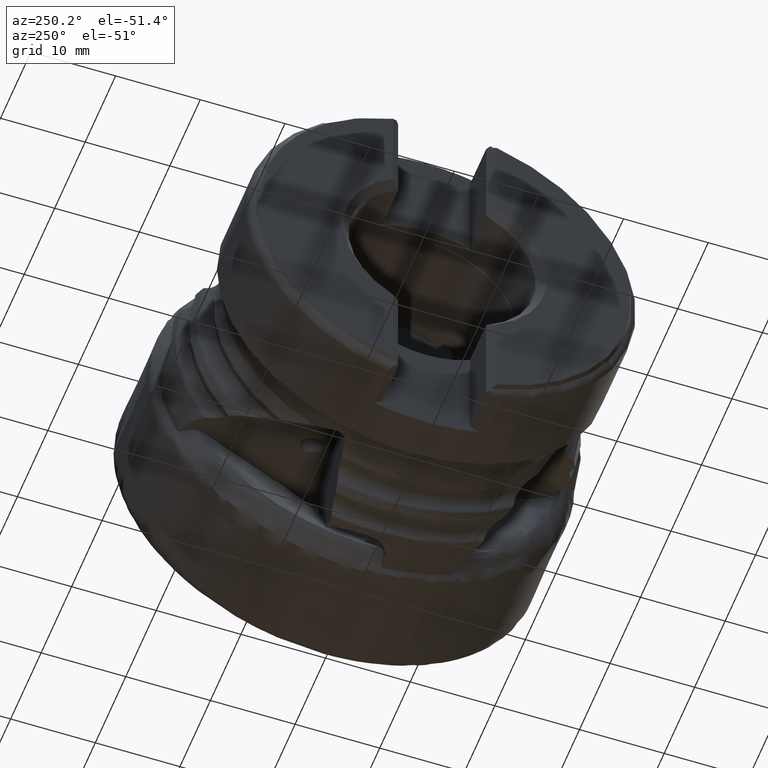
[diagram: clean part render]
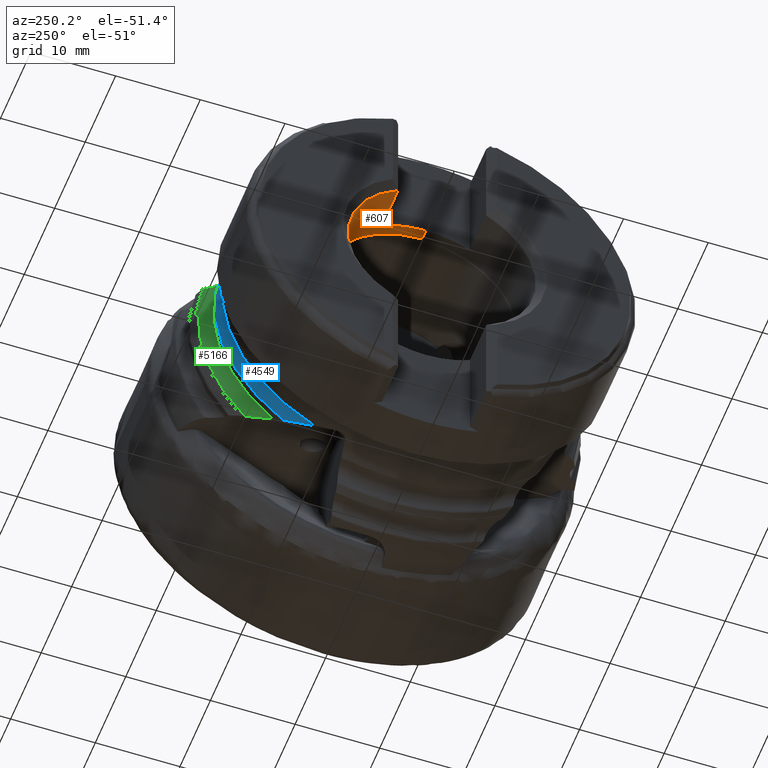
[diagram: same view with three faces highlighted in distinct colors, each labeled with its STEP entity id]
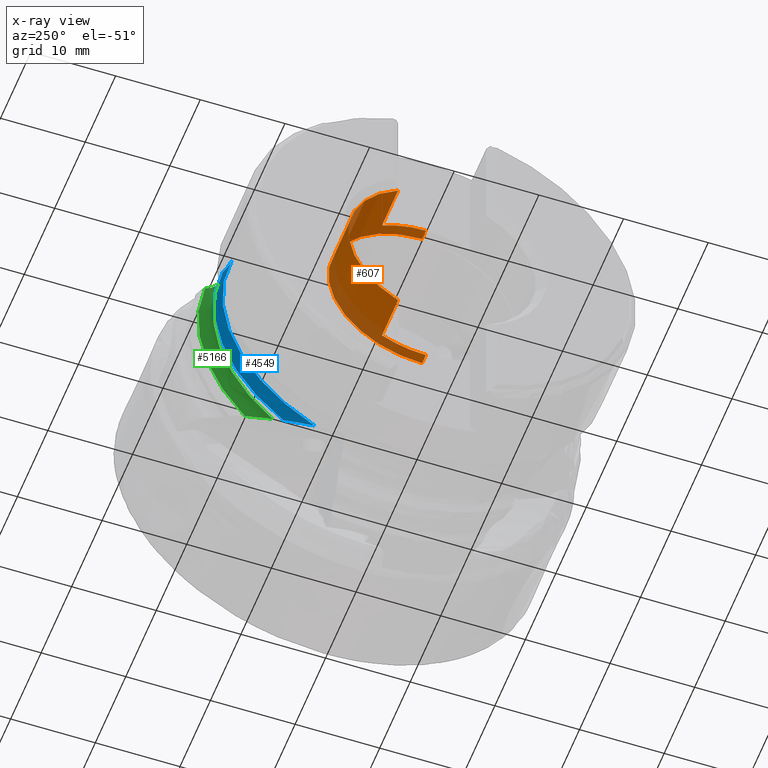
[diagram: x-ray of the same camera — body ghosted, the three highlighted faces saturated]
A machine part, auxiliary view with three faces highlighted in distinct colors.
The next image is the same camera in x-ray (body ghosted, the three faces saturated) — at least one of them is partly hidden behind the body in this view.
Their STEP definitions:

[orange] entity #607 — the highlighted cylindrical surface (partial cylindrical patch) has radius 11.075 mm, axis along (1, -0, -0).
#270 = VERTEX_POINT ( 'NONE', #12231 ) ;
#335 = DIRECTION ( 'NONE',  ( 1.000000000000000000, -0.0000000000000000000, -0.0000000000000000000 ) ) ;
#607 = ADVANCED_FACE ( 'NONE', ( #13836 ), #11454, .F. ) ;
#789 = CARTESIAN_POINT ( 'NONE',  ( -38.25000000000000700, 5.199999999999994800, 9.778324242936509600 ) ) ;
#2027 = CIRCLE ( 'NONE', #12628, 11.07499999999999800 ) ;
#2056 = DIRECTION ( 'NONE',  ( 1.000000000000000000, -0.0000000000000000000, -0.0000000000000000000 ) ) ;
#2134 = VECTOR ( 'NONE', #6809, 1000.000000000000000 ) ;
#2639 = VERTEX_POINT ( 'NONE', #789 ) ;
#2943 = CARTESIAN_POINT ( 'NONE',  ( -32.95000000000001000, 0.0000000000000000000, 0.0000000000000000000 ) ) ;
#2994 = DIRECTION ( 'NONE',  ( -1.000000000000000000, -0.0000000000000000000, -0.0000000000000000000 ) ) ;
#3136 = DIRECTION ( 'NONE',  ( 0.0000000000000000000, 0.0000000000000000000, -1.000000000000000000 ) ) ;
#3620 = DIRECTION ( 'NONE',  ( 1.000000000000000000, -0.0000000000000000000, -0.0000000000000000000 ) ) ;
#3708 = ORIENTED_EDGE ( 'NONE', *, *, #7189, .T. ) ;
#4034 = DIRECTION ( 'NONE',  ( 1.000000000000000000, -0.0000000000000000000, -0.0000000000000000000 ) ) ;
#4147 = CIRCLE ( 'NONE', #9518, 11.07499999999999800 ) ;
#4214 = DIRECTION ( 'NONE',  ( -1.000000000000000000, -0.0000000000000000000, -0.0000000000000000000 ) ) ;
#4238 = CARTESIAN_POINT ( 'NONE',  ( -38.25000000000000700, 0.0000000000000000000, 0.0000000000000000000 ) ) ;
#4252 = VERTEX_POINT ( 'NONE', #11065 ) ;
#4625 = LINE ( 'NONE', #6129, #7390 ) ;
#4799 = AXIS2_PLACEMENT_3D ( 'NONE', #11693, #3620, #14172 ) ;
#5029 = VERTEX_POINT ( 'NONE', #6928 ) ;
#5142 = VERTEX_POINT ( 'NONE', #7239 ) ;
#5265 = LINE ( 'NONE', #12872, #2134 ) ;
#5360 = AXIS2_PLACEMENT_3D ( 'NONE', #2943, #2994, #14611 ) ;
#5426 = ORIENTED_EDGE ( 'NONE', *, *, #6360, .T. ) ;
#5766 = DIRECTION ( 'NONE',  ( 1.000000000000000000, -0.0000000000000000000, -0.0000000000000000000 ) ) ;
#6129 = CARTESIAN_POINT ( 'NONE',  ( 0.0000000000000000000, 1.356296330055693400E-015, 11.07499999999999800 ) ) ;
#6360 = EDGE_CURVE ( 'NONE', #4252, #270, #9677, .T. ) ;
#6466 = VERTEX_POINT ( 'NONE', #14025 ) ;
#6675 = CARTESIAN_POINT ( 'NONE',  ( -31.70000000000000600, 0.0000000000000000000, 0.0000000000000000000 ) ) ;
#6736 = EDGE_CURVE ( 'NONE', #270, #6466, #4147, .T. ) ;
#6809 = DIRECTION ( 'NONE',  ( -1.000000000000000000, 0.0000000000000000000, 0.0000000000000000000 ) ) ;
#6839 = CARTESIAN_POINT ( 'NONE',  ( 0.0000000000000000000, 0.0000000000000000000, -11.07499999999999800 ) ) ;
#6928 = CARTESIAN_POINT ( 'NONE',  ( -32.95000000000001000, 1.356296330055693400E-015, 11.07499999999999800 ) ) ;
#6985 = AXIS2_PLACEMENT_3D ( 'NONE', #4238, #4034, #12461 ) ;
#7189 = EDGE_CURVE ( 'NONE', #5142, #2639, #5265, .T. ) ;
#7239 = CARTESIAN_POINT ( 'NONE',  ( -32.95000000000001000, 5.199999999999994800, 9.778324242936518500 ) ) ;
#7270 = ORIENTED_EDGE ( 'NONE', *, *, #13558, .T. ) ;
#7390 = VECTOR ( 'NONE', #335, 1000.000000000000000 ) ;
#7789 = ORIENTED_EDGE ( 'NONE', *, *, #12547, .T. ) ;
#7957 = EDGE_CURVE ( 'NONE', #8272, #2639, #13903, .T. ) ;
#7961 = DIRECTION ( 'NONE',  ( 0.0000000000000000000, 0.0000000000000000000, -1.000000000000000000 ) ) ;
#8272 = VERTEX_POINT ( 'NONE', #9941 ) ;
#8465 = VERTEX_POINT ( 'NONE', #15161 ) ;
#9411 = ORIENTED_EDGE ( 'NONE', *, *, #7957, .F. ) ;
#9518 = AXIS2_PLACEMENT_3D ( 'NONE', #6675, #2056, #7961 ) ;
#9677 = LINE ( 'NONE', #6839, #10961 ) ;
#9811 = EDGE_CURVE ( 'NONE', #5029, #6466, #4625, .T. ) ;
#9894 = LINE ( 'NONE', #15255, #10256 ) ;
#9941 = CARTESIAN_POINT ( 'NONE',  ( -38.25000000000000700, 5.199999999999994800, -9.778324242936523800 ) ) ;
#10256 = VECTOR ( 'NONE', #5766, 1000.000000000000000 ) ;
#10450 = ORIENTED_EDGE ( 'NONE', *, *, #9811, .F. ) ;
#10657 = ORIENTED_EDGE ( 'NONE', *, *, #11470, .T. ) ;
#10961 = VECTOR ( 'NONE', #14978, 1000.000000000000000 ) ;
#11065 = CARTESIAN_POINT ( 'NONE',  ( -32.95000000000001000, 0.0000000000000000000, -11.07499999999999800 ) ) ;
#11264 = CARTESIAN_POINT ( 'NONE',  ( -32.95000000000001000, 0.0000000000000000000, 0.0000000000000000000 ) ) ;
#11454 = CYLINDRICAL_SURFACE ( 'NONE', #4799, 11.07499999999999800 ) ;
#11470 = EDGE_CURVE ( 'NONE', #5029, #5142, #2027, .T. ) ;
#11693 = CARTESIAN_POINT ( 'NONE',  ( 0.0000000000000000000, 0.0000000000000000000, 0.0000000000000000000 ) ) ;
#12231 = CARTESIAN_POINT ( 'NONE',  ( -31.70000000000000600, 0.0000000000000000000, -11.07499999999999800 ) ) ;
#12461 = DIRECTION ( 'NONE',  ( 0.0000000000000000000, 0.0000000000000000000, -1.000000000000000000 ) ) ;
#12547 = EDGE_CURVE ( 'NONE', #8272, #8465, #9894, .T. ) ;
#12628 = AXIS2_PLACEMENT_3D ( 'NONE', #11264, #4214, #3136 ) ;
#12872 = CARTESIAN_POINT ( 'NONE',  ( 0.0000000000000000000, 5.199999999999994800, 9.778324242936518500 ) ) ;
#13494 = ORIENTED_EDGE ( 'NONE', *, *, #6736, .T. ) ;
#13558 = EDGE_CURVE ( 'NONE', #8465, #4252, #15258, .T. ) ;
#13836 = FACE_OUTER_BOUND ( 'NONE', #14389, .T. ) ;
#13903 = CIRCLE ( 'NONE', #6985, 11.07499999999999600 ) ;
#14025 = CARTESIAN_POINT ( 'NONE',  ( -31.70000000000000600, 1.356296330055693400E-015, 11.07499999999999800 ) ) ;
#14172 = DIRECTION ( 'NONE',  ( 0.0000000000000000000, 0.0000000000000000000, -1.000000000000000000 ) ) ;
#14389 = EDGE_LOOP ( 'NONE', ( #10450, #10657, #3708, #9411, #7789, #7270, #5426, #13494 ) ) ;
#14611 = DIRECTION ( 'NONE',  ( 0.0000000000000000000, 8.881784197001252300E-016, -1.000000000000000000 ) ) ;
#14978 = DIRECTION ( 'NONE',  ( 1.000000000000000000, -0.0000000000000000000, -0.0000000000000000000 ) ) ;
#15161 = CARTESIAN_POINT ( 'NONE',  ( -32.95000000000001000, 5.199999999999994800, -9.778324242936518500 ) ) ;
#15255 = CARTESIAN_POINT ( 'NONE',  ( 0.0000000000000000000, 5.199999999999994800, -9.778324242936518500 ) ) ;
#15258 = CIRCLE ( 'NONE', #5360, 11.07499999999999800 ) ;

[blue] entity #4549 — the highlighted toroidal blend (fillet) surface has major radius 25.1416 mm and minor (blend) radius 4 mm.
#152 = CARTESIAN_POINT ( 'NONE',  ( -23.20598338171591700, 20.50650087780077500, 6.468539057037883600 ) ) ;
#635 = AXIS2_PLACEMENT_3D ( 'NONE', #7182, #12989, #1221 ) ;
#1221 = DIRECTION ( 'NONE',  ( 0.0000000000000000000, 0.0000000000000000000, 1.000000000000000000 ) ) ;
#1392 = ORIENTED_EDGE ( 'NONE', *, *, #13475, .T. ) ;
#2779 = B_SPLINE_CURVE_WITH_KNOTS ( 'NONE', 3,
 ( #152, #9489, #9387, #8325, #4773, #6987 ),
 .UNSPECIFIED., .F., .F.,
 ( 4, 2, 4 ),
 ( 2.258041023810004800E-007, 0.0008761439532688768300, 0.001752062102435372700 ),
 .UNSPECIFIED. ) ;
#3265 = CIRCLE ( 'NONE', #9007, 21.14159263926023500 ) ;
#4549 = ADVANCED_FACE ( 'NONE', ( #6967 ), #15074, .F. ) ;
#4773 = CARTESIAN_POINT ( 'NONE',  ( -24.57838190627169100, 20.05309677775108700, 6.696476503619866300 ) ) ;
#5190 = CARTESIAN_POINT ( 'NONE',  ( -24.86646095473861700, 0.0000000000000000000, 0.0000000000000000000 ) ) ;
#5498 = CARTESIAN_POINT ( 'NONE',  ( -24.86646095473861700, 20.03699206719064200, 6.744322666047485100 ) ) ;
#5929 = VERTEX_POINT ( 'NONE', #12659 ) ;
#6093 = CARTESIAN_POINT ( 'NONE',  ( -23.20598338171591700, 13.36499921445363600, -16.84444631863339800 ) ) ;
#6967 = FACE_OUTER_BOUND ( 'NONE', #9731, .T. ) ;
#6987 = CARTESIAN_POINT ( 'NONE',  ( -24.86646095473861700, 20.03699206719064200, 6.744322666047485100 ) ) ;
#7009 = EDGE_CURVE ( 'NONE', #7045, #5929, #9005, .T. ) ;
#7045 = VERTEX_POINT ( 'NONE', #6093 ) ;
#7182 = CARTESIAN_POINT ( 'NONE',  ( -23.20598338171591400, 0.0000000000000000000, 0.0000000000000000000 ) ) ;
#8183 = DIRECTION ( 'NONE',  ( 0.0000000000000000000, 0.0000000000000000000, -1.000000000000000000 ) ) ;
#8320 = ORIENTED_EDGE ( 'NONE', *, *, #11637, .F. ) ;
#8325 = CARTESIAN_POINT ( 'NONE',  ( -24.28777799739200200, 20.10279820585778400, 6.648210994898031200 ) ) ;
#8443 = ORIENTED_EDGE ( 'NONE', *, *, #7009, .T. ) ;
#9005 = B_SPLINE_CURVE_WITH_KNOTS ( 'NONE', 3,
 ( #9430, #12938, #10718, #11902 ),
 .UNSPECIFIED., .F., .F.,
 ( 4, 4 ),
 ( 4.573069331119772800E-007, 0.003880764028521155600 ),
 .UNSPECIFIED. ) ;
#9007 = AXIS2_PLACEMENT_3D ( 'NONE', #5190, #12322, #11193 ) ;
#9150 = CARTESIAN_POINT ( 'NONE',  ( -24.86646095473861700, 0.0000000000000000000, 0.0000000000000000000 ) ) ;
#9387 = CARTESIAN_POINT ( 'NONE',  ( -23.73265156968434700, 20.26095428497053800, 6.556011755247277000 ) ) ;
#9430 = CARTESIAN_POINT ( 'NONE',  ( -23.20598338171591700, 13.36499921445363600, -16.84444631863339800 ) ) ;
#9489 = CARTESIAN_POINT ( 'NONE',  ( -23.46459294244904100, 20.36921932677569900, 6.511490722957428400 ) ) ;
#9731 = EDGE_LOOP ( 'NONE', ( #8443, #10060, #8320, #1392 ) ) ;
#10060 = ORIENTED_EDGE ( 'NONE', *, *, #14254, .T. ) ;
#10474 = AXIS2_PLACEMENT_3D ( 'NONE', #9150, #14037, #8183 ) ;
#10718 = CARTESIAN_POINT ( 'NONE',  ( -24.33622471969710700, 11.29429748421833000, -17.91083174479786800 ) ) ;
#11193 = DIRECTION ( 'NONE',  ( 0.0000000000000000000, 0.0000000000000000000, -1.000000000000000000 ) ) ;
#11637 = EDGE_CURVE ( 'NONE', #11678, #13828, #2779, .T. ) ;
#11678 = VERTEX_POINT ( 'NONE', #12945 ) ;
#11902 = CARTESIAN_POINT ( 'NONE',  ( -24.86646095473862800, 10.26275962623273800, -18.48357931188085200 ) ) ;
#12295 = CIRCLE ( 'NONE', #635, 21.50252486996976100 ) ;
#12322 = DIRECTION ( 'NONE',  ( 1.000000000000000000, -0.0000000000000000000, -0.0000000000000000000 ) ) ;
#12659 = CARTESIAN_POINT ( 'NONE',  ( -24.86646095473862800, 10.26275962623273800, -18.48357931188085200 ) ) ;
#12938 = CARTESIAN_POINT ( 'NONE',  ( -23.77165871191105500, 12.31428909428937100, -17.34862767385444100 ) ) ;
#12945 = CARTESIAN_POINT ( 'NONE',  ( -23.20598338171591700, 20.50650087780077500, 6.468539057037883600 ) ) ;
#12989 = DIRECTION ( 'NONE',  ( -1.000000000000000000, -0.0000000000000000000, -0.0000000000000000000 ) ) ;
#13475 = EDGE_CURVE ( 'NONE', #11678, #7045, #12295, .T. ) ;
#13828 = VERTEX_POINT ( 'NONE', #5498 ) ;
#14037 = DIRECTION ( 'NONE',  ( 1.000000000000000000, -0.0000000000000000000, -0.0000000000000000000 ) ) ;
#14254 = EDGE_CURVE ( 'NONE', #5929, #13828, #3265, .T. ) ;
#15074 = TOROIDAL_SURFACE ( 'NONE', #10474, 25.14159263926023200, 3.999999999999998200 ) ;

[green] entity #5166 — the highlighted toroidal blend (fillet) surface has major radius 22.799 mm and minor (blend) radius 1.5 mm.
#102 = ORIENTED_EDGE ( 'NONE', *, *, #11186, .F. ) ;
#142 = ORIENTED_EDGE ( 'NONE', *, *, #5229, .T. ) ;
#325 = DIRECTION ( 'NONE',  ( 0.0000000000000000000, 0.0000000000000000000, 1.000000000000000000 ) ) ;
#452 = CARTESIAN_POINT ( 'NONE',  ( -22.19999999999933500, 14.26757627161172000, -15.81404140105022200 ) ) ;
#1593 = CARTESIAN_POINT ( 'NONE',  ( -20.84780192604529600, 16.46515524435652400, -14.77970066289862800 ) ) ;
#1763 = CARTESIAN_POINT ( 'NONE',  ( -20.72600956930869700, 21.69117756398312100, 6.056647840109287800 ) ) ;
#2133 = DIRECTION ( 'NONE',  ( -1.000000000000000000, -0.0000000000000000000, -0.0000000000000000000 ) ) ;
#2150 = CARTESIAN_POINT ( 'NONE',  ( -22.19999999999999900, 20.34549730199004400, 6.301458373672634400 ) ) ;
#2564 = DIRECTION ( 'NONE',  ( 0.0000000000000000000, 0.0000000000000000000, 1.000000000000000000 ) ) ;
#2714 = CARTESIAN_POINT ( 'NONE',  ( -21.43109624539903600, 15.24700678166338000, -15.16108755783998100 ) ) ;
#2719 = CIRCLE ( 'NONE', #12179, 22.52088291278414900 ) ;
#3077 = CARTESIAN_POINT ( 'NONE',  ( -20.81855401123999600, 21.34272662593694400, 6.072018261609851900 ) ) ;
#3568 = VERTEX_POINT ( 'NONE', #8671 ) ;
#3886 = CARTESIAN_POINT ( 'NONE',  ( -21.87754295157609300, 14.62453193353812600, -15.52264594600739900 ) ) ;
#3986 = CARTESIAN_POINT ( 'NONE',  ( -20.76700156565521700, 16.73531996946202600, -14.74495870397178400 ) ) ;
#4395 = CARTESIAN_POINT ( 'NONE',  ( -20.72600956930750700, 0.0000000000000000000, 0.0000000000000000000 ) ) ;
#4414 = CARTESIAN_POINT ( 'NONE',  ( -21.50076827290014600, 20.51578910771453600, 6.185325128414417500 ) ) ;
#4438 = ORIENTED_EDGE ( 'NONE', *, *, #5488, .T. ) ;
#4510 = CARTESIAN_POINT ( 'NONE',  ( -21.84274626932450000, 20.36387474019488100, 6.242123201202654800 ) ) ;
#4770 = CARTESIAN_POINT ( 'NONE',  ( -22.19999999999999900, 0.0000000000000000000, 0.0000000000000000000 ) ) ;
#5033 = CARTESIAN_POINT ( 'NONE',  ( -22.03534131154062700, 14.43767140054360900, -15.66057998256104400 ) ) ;
#5166 = ADVANCED_FACE ( 'NONE', ( #14884 ), #6009, .F. ) ;
#5229 = EDGE_CURVE ( 'NONE', #13630, #3568, #12783, .T. ) ;
#5488 = EDGE_CURVE ( 'NONE', #5963, #13630, #2719, .T. ) ;
#5627 = CARTESIAN_POINT ( 'NONE',  ( -21.10338825033018000, 20.88301941287136600, 6.119325503635889300 ) ) ;
#5963 = VERTEX_POINT ( 'NONE', #8190 ) ;
#6009 = TOROIDAL_SURFACE ( 'NONE', #11976, 22.79900556599802300, 1.500000000000037100 ) ;
#6253 = CARTESIAN_POINT ( 'NONE',  ( -21.04925242278859800, 15.94780422182505800, -14.89332087507247600 ) ) ;
#6379 = CARTESIAN_POINT ( 'NONE',  ( -22.19999999999999900, 20.34549730199004400, 6.301458373672634400 ) ) ;
#6441 = B_SPLINE_CURVE_WITH_KNOTS ( 'NONE', 3,
 ( #1763, #7654, #3077, #7863, #5627, #4414, #4510, #2150 ),
 .UNSPECIFIED., .F., .F.,
 ( 4, 2, 2, 4 ),
 ( 1.114072379950865600E-006, 0.0005403575158006981500, 0.001079600959221445600, 0.002158087846062939300 ),
 .UNSPECIFIED. ) ;
#7260 = CARTESIAN_POINT ( 'NONE',  ( -22.19999999999999900, 0.0000000000000000000, 0.0000000000000000000 ) ) ;
#7654 = CARTESIAN_POINT ( 'NONE',  ( -20.75833753336532100, 21.51179351199811100, 6.062017092151180000 ) ) ;
#7863 = CARTESIAN_POINT ( 'NONE',  ( -20.99302235032180500, 21.02458287620296000, 6.100995171019294000 ) ) ;
#8190 = CARTESIAN_POINT ( 'NONE',  ( -20.72600956930869700, 21.69117756398312100, 6.056647840109287800 ) ) ;
#8323 = DIRECTION ( 'NONE',  ( -1.000000000000000000, -0.0000000000000000000, -0.0000000000000000000 ) ) ;
#8671 = CARTESIAN_POINT ( 'NONE',  ( -22.19999999999933500, 14.26757627161172000, -15.81404140105022200 ) ) ;
#8677 = CARTESIAN_POINT ( 'NONE',  ( -20.72600956930858000, 17.01782750803692000, -14.75071910376143200 ) ) ;
#8827 = VERTEX_POINT ( 'NONE', #6379 ) ;
#9351 = EDGE_LOOP ( 'NONE', ( #102, #11475, #4438, #142 ) ) ;
#9364 = CIRCLE ( 'NONE', #15103, 21.29900556599798700 ) ;
#10359 = EDGE_CURVE ( 'NONE', #5963, #8827, #6441, .T. ) ;
#11186 = EDGE_CURVE ( 'NONE', #8827, #3568, #9364, .T. ) ;
#11475 = ORIENTED_EDGE ( 'NONE', *, *, #10359, .F. ) ;
#11976 = AXIS2_PLACEMENT_3D ( 'NONE', #4770, #8323, #2564 ) ;
#12053 = CARTESIAN_POINT ( 'NONE',  ( -21.57574858786848900, 15.02843439136737500, -15.27306086315164700 ) ) ;
#12179 = AXIS2_PLACEMENT_3D ( 'NONE', #4395, #2133, #13802 ) ;
#12783 = B_SPLINE_CURVE_WITH_KNOTS ( 'NONE', 3,
 ( #8677, #3986, #1593, #6253, #13397, #2714, #12053, #3886, #5033, #452 ),
 .UNSPECIFIED., .F., .F.,
 ( 4, 2, 2, 2, 4 ),
 ( 1.378031271060554800E-006, 0.0008472916171362715700, 0.001693205203001482700, 0.002539118788866693700, 0.003385032374731904900 ),
 .UNSPECIFIED. ) ;
#13397 = CARTESIAN_POINT ( 'NONE',  ( -21.16847485596695600, 15.70626727748445200, -14.97179792312510900 ) ) ;
#13630 = VERTEX_POINT ( 'NONE', #14566 ) ;
#13802 = DIRECTION ( 'NONE',  ( 0.0000000000000000000, 0.0000000000000000000, 1.000000000000000000 ) ) ;
#14447 = DIRECTION ( 'NONE',  ( -1.000000000000000000, -0.0000000000000000000, -0.0000000000000000000 ) ) ;
#14566 = CARTESIAN_POINT ( 'NONE',  ( -20.72600956930858000, 17.01782750803692000, -14.75071910376143200 ) ) ;
#14884 = FACE_OUTER_BOUND ( 'NONE', #9351, .T. ) ;
#15103 = AXIS2_PLACEMENT_3D ( 'NONE', #7260, #14447, #325 ) ;